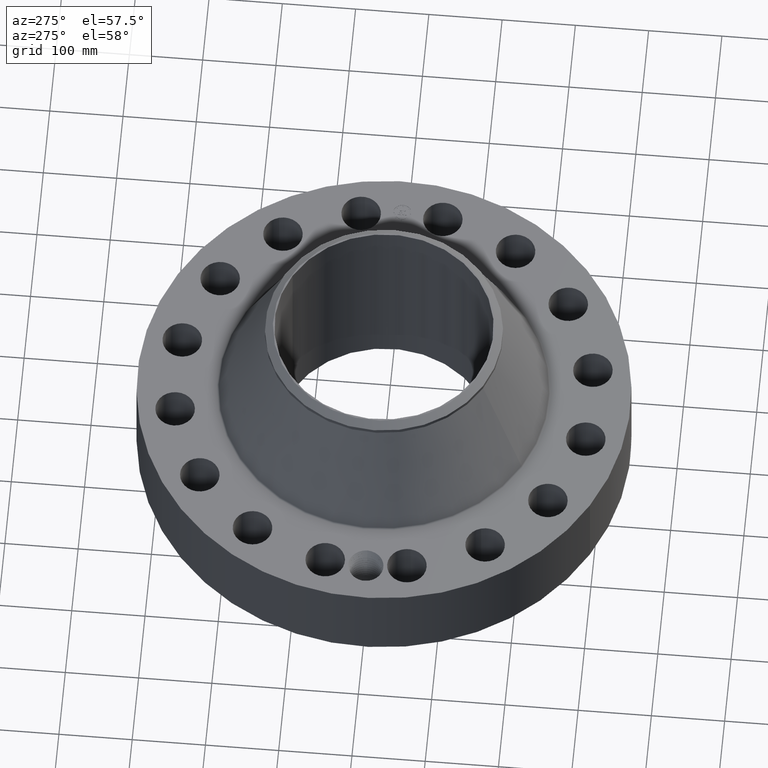
[diagram: clean part render]
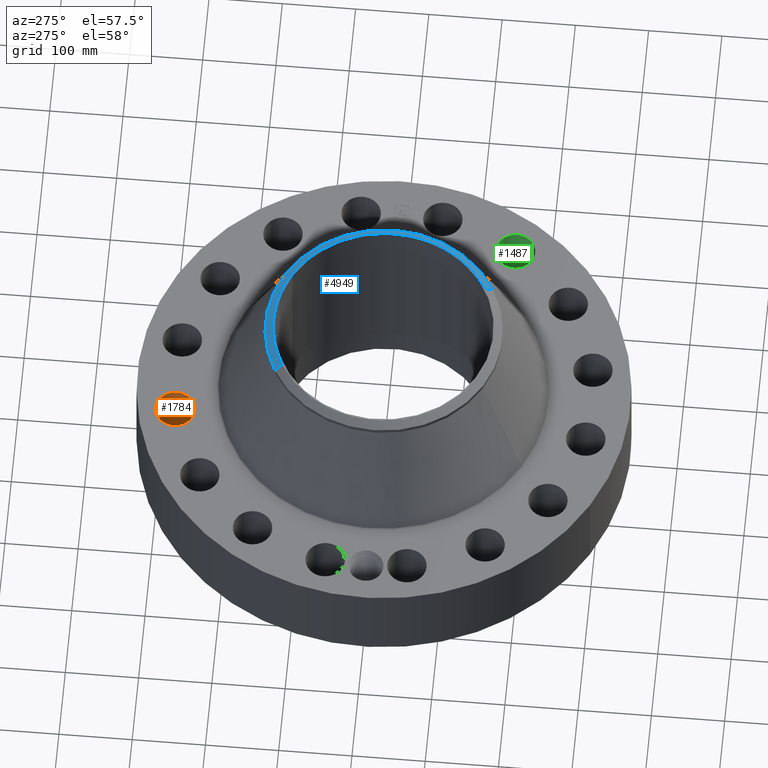
[diagram: same view with three faces highlighted in distinct colors, each labeled with its STEP entity id]
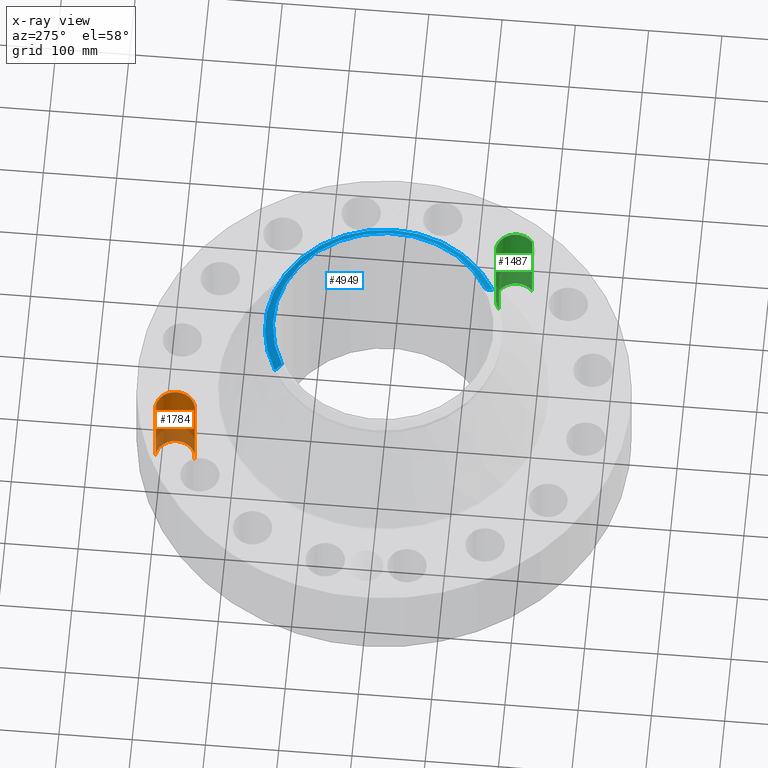
[diagram: x-ray of the same camera — body ghosted, the three highlighted faces saturated]
A machine part, auxiliary view with three faces highlighted in distinct colors.
The next image is the same camera in x-ray (body ghosted, the three faces saturated) — at least one of them is partly hidden behind the body in this view.
Their STEP definitions:

[orange] entity #1784 — the highlighted cylindrical surface (edge-blend (fillet) strip) has radius 26.924 mm, axis along (0, 0, -1).
#469=AXIS2_PLACEMENT_3D('Circle Axis2P3D',#467,#468,$) ;
#933=AXIS2_PLACEMENT_3D('Circle Axis2P3D',#931,#932,$) ;
#1759=AXIS2_PLACEMENT_3D('Cylinder Axis2P3D',#1756,#1757,#1758) ;
#462=CARTESIAN_POINT('Vertex',(-2.30828696633,9.97993070022,0.250000000001)) ;
#464=CARTESIAN_POINT('Vertex',(-2.08124527905,12.0877381089,0.250000000001)) ;
#467=CARTESIAN_POINT('Axis2P3D Location',(-2.19476612269,11.0338344046,0.250000000001)) ;
#931=CARTESIAN_POINT('Axis2P3D Location',(-2.19476612269,11.0338344046,5.13000000002)) ;
#935=CARTESIAN_POINT('Vertex',(-2.08124527905,12.0877381089,5.13000000002)) ;
#937=CARTESIAN_POINT('Vertex',(-2.30828696633,9.97993070022,5.13000000002)) ;
#1756=CARTESIAN_POINT('Axis2P3D Location',(-2.19476612269,11.0338344046,5.12606299215)) ;
#1761=CARTESIAN_POINT('Line Origine',(-2.30828696633,9.97993070022,2.69000000001)) ;
#1766=CARTESIAN_POINT('Line Origine',(-2.08124527905,12.0877381089,2.69000000001)) ;
#468=DIRECTION('Axis2P3D Direction',(0.,0.,-0.0393700787402)) ;
#932=DIRECTION('Axis2P3D Direction',(0.,0.,-0.0393700787402)) ;
#1757=DIRECTION('Axis2P3D Direction',(0.,0.,-0.0393700787402)) ;
#1758=DIRECTION('Axis2P3D XDirection',(0.00421634391778,0.0391436526652,0.)) ;
#1762=DIRECTION('Vector Direction',(0.,0.,-0.0393700787402)) ;
#1767=DIRECTION('Vector Direction',(0.,0.,-0.0393700787402)) ;
#1763=VECTOR('Line Direction',#1762,0.0393700787402) ;
#1768=VECTOR('Line Direction',#1767,0.0393700787402) ;
#1779=ORIENTED_EDGE('',*,*,#1770,.F.) ;
#1780=ORIENTED_EDGE('',*,*,#471,.T.) ;
#1781=ORIENTED_EDGE('',*,*,#1765,.T.) ;
#1782=ORIENTED_EDGE('',*,*,#939,.F.) ;
#1784=ADVANCED_FACE('PartBody',(#1783),#1760,.F.) ;
#470=CIRCLE('generated circle',#469,1.06) ;
#934=CIRCLE('generated circle',#933,1.06) ;
#1760=CYLINDRICAL_SURFACE('generated cylinder',#1759,1.06) ;
#471=EDGE_CURVE('',#465,#463,#470,.T.) ;
#939=EDGE_CURVE('',#936,#938,#934,.T.) ;
#1765=EDGE_CURVE('',#463,#938,#1764,.F.) ;
#1770=EDGE_CURVE('',#465,#936,#1769,.F.) ;
#1778=EDGE_LOOP('',(#1779,#1780,#1781,#1782)) ;
#1783=FACE_OUTER_BOUND('',#1778,.T.) ;
#1764=LINE('Line',#1761,#1763) ;
#1769=LINE('Line',#1766,#1768) ;
#463=VERTEX_POINT('',#462) ;
#465=VERTEX_POINT('',#464) ;
#936=VERTEX_POINT('',#935) ;
#938=VERTEX_POINT('',#937) ;

[blue] entity #4949 — the highlighted conical surface has half-angle 52.5 deg.
#3752=AXIS2_PLACEMENT_3D('Circle Axis2P3D',#3750,#3751,$) ;
#3779=AXIS2_PLACEMENT_3D('Circle Axis2P3D',#3777,#3778,$) ;
#4565=AXIS2_PLACEMENT_3D('Circle Axis2P3D',#4563,#4564,$) ;
#4930=AXIS2_PLACEMENT_3D('Cone Axis2P3D',#4927,#4928,#4929) ;
#3747=CARTESIAN_POINT('Vertex',(3.05633780861,5.59458883207,11.0467559539)) ;
#3750=CARTESIAN_POINT('Axis2P3D Location',(0.,0.,11.0467559539)) ;
#3754=CARTESIAN_POINT('Vertex',(3.05633780861,-5.59458883207,11.0467559539)) ;
#3774=CARTESIAN_POINT('Vertex',(-3.05633780861,5.59458883207,11.0467559539)) ;
#3777=CARTESIAN_POINT('Axis2P3D Location',(0.,0.,11.0467559539)) ;
#4563=CARTESIAN_POINT('Axis2P3D Location',(0.,0.,11.37)) ;
#4567=CARTESIAN_POINT('Vertex',(2.85437508172,-5.22489854025,11.37)) ;
#4569=CARTESIAN_POINT('Vertex',(-2.85437508172,5.22489854025,11.37)) ;
#4927=CARTESIAN_POINT('Axis2P3D Location',(0.,0.,11.37)) ;
#4932=CARTESIAN_POINT('Line Origine',(-2.95535644517,5.40974368616,11.208377977)) ;
#4937=CARTESIAN_POINT('Line Origine',(2.95535644517,-5.40974368616,11.208377977)) ;
#3751=DIRECTION('Axis2P3D Direction',(0.,0.,-0.0393700787402)) ;
#3778=DIRECTION('Axis2P3D Direction',(0.,0.,-0.0393700787402)) ;
#4564=DIRECTION('Axis2P3D Direction',(0.,0.,-0.0393700787402)) ;
#4928=DIRECTION('Axis2P3D Direction',(-0.,-0.,-0.0393700787402)) ;
#4929=DIRECTION('Axis2P3D XDirection',(0.0188750212049,-0.0345504945626,0.)) ;
#4933=DIRECTION('Vector Direction',(-0.014974561121,0.02741075027,-0.023966985394)) ;
#4938=DIRECTION('Vector Direction',(0.014974561121,-0.02741075027,-0.023966985394)) ;
#4934=VECTOR('Line Direction',#4933,0.0393700787402) ;
#4939=VECTOR('Line Direction',#4938,0.0393700787402) ;
#4943=ORIENTED_EDGE('',*,*,#4936,.F.) ;
#4944=ORIENTED_EDGE('',*,*,#4571,.F.) ;
#4945=ORIENTED_EDGE('',*,*,#4941,.T.) ;
#4946=ORIENTED_EDGE('',*,*,#3756,.T.) ;
#4947=ORIENTED_EDGE('',*,*,#3781,.F.) ;
#4949=ADVANCED_FACE('PartBody',(#4948),#4931,.T.) ;
#3753=CIRCLE('generated circle',#3752,6.37500000003) ;
#3780=CIRCLE('generated circle',#3779,6.37500000003) ;
#4566=CIRCLE('generated circle',#4565,5.9537401575) ;
#4931=CONICAL_SURFACE('Cone',#4930,5.9537401575,0.916297857297) ;
#3756=EDGE_CURVE('',#3755,#3748,#3753,.F.) ;
#3781=EDGE_CURVE('',#3775,#3748,#3780,.T.) ;
#4571=EDGE_CURVE('',#4568,#4570,#4566,.F.) ;
#4936=EDGE_CURVE('',#4570,#3775,#4935,.T.) ;
#4941=EDGE_CURVE('',#4568,#3755,#4940,.T.) ;
#4942=EDGE_LOOP('',(#4943,#4944,#4945,#4946,#4947)) ;
#4948=FACE_OUTER_BOUND('',#4942,.T.) ;
#4935=LINE('Line',#4932,#4934) ;
#4940=LINE('Line',#4937,#4939) ;
#3748=VERTEX_POINT('',#3747) ;
#3755=VERTEX_POINT('',#3754) ;
#3775=VERTEX_POINT('',#3774) ;
#4568=VERTEX_POINT('',#4567) ;
#4570=VERTEX_POINT('',#4569) ;

[green] entity #1487 — the highlighted cylindrical surface (edge-blend (fillet) strip) has radius 26.924 mm, axis along (0, -0, -1).
#280=AXIS2_PLACEMENT_3D('Circle Axis2P3D',#278,#279,$) ;
#762=AXIS2_PLACEMENT_3D('Circle Axis2P3D',#760,#761,$) ;
#1469=AXIS2_PLACEMENT_3D('Cylinder Axis2P3D',#1466,#1467,#1468) ;
#278=CARTESIAN_POINT('Axis2P3D Location',(9.35403313844,-6.2501651215,0.250000000001)) ;
#282=CARTESIAN_POINT('Vertex',(8.68908204072,-5.42467130708,0.250000000001)) ;
#284=CARTESIAN_POINT('Vertex',(10.0189842362,-7.07565893591,0.250000000001)) ;
#755=CARTESIAN_POINT('Vertex',(10.0189842362,-7.07565893591,5.13000000002)) ;
#757=CARTESIAN_POINT('Vertex',(8.68908204072,-5.42467130708,5.13000000002)) ;
#760=CARTESIAN_POINT('Axis2P3D Location',(9.35403313844,-6.2501651215,5.13000000002)) ;
#1466=CARTESIAN_POINT('Axis2P3D Location',(9.35403313844,-6.2501651215,5.12606299215)) ;
#1471=CARTESIAN_POINT('Line Origine',(8.68908204072,-5.42467130708,2.69000000001)) ;
#1476=CARTESIAN_POINT('Line Origine',(10.0189842362,-7.07565893591,2.69000000001)) ;
#279=DIRECTION('Axis2P3D Direction',(0.,0.,-0.0393700787402)) ;
#761=DIRECTION('Axis2P3D Direction',(0.,0.,-0.0393700787402)) ;
#1467=DIRECTION('Axis2P3D Direction',(0.,-0.,-0.0393700787402)) ;
#1468=DIRECTION('Axis2P3D XDirection',(0.0246973368639,-0.030660147616,0.)) ;
#1472=DIRECTION('Vector Direction',(0.,0.,-0.0393700787402)) ;
#1477=DIRECTION('Vector Direction',(0.,0.,-0.0393700787402)) ;
#1473=VECTOR('Line Direction',#1472,0.0393700787402) ;
#1478=VECTOR('Line Direction',#1477,0.0393700787402) ;
#1482=ORIENTED_EDGE('',*,*,#1475,.F.) ;
#1483=ORIENTED_EDGE('',*,*,#286,.T.) ;
#1484=ORIENTED_EDGE('',*,*,#1480,.T.) ;
#1485=ORIENTED_EDGE('',*,*,#764,.F.) ;
#1487=ADVANCED_FACE('PartBody',(#1486),#1470,.F.) ;
#281=CIRCLE('generated circle',#280,1.06) ;
#763=CIRCLE('generated circle',#762,1.06) ;
#1470=CYLINDRICAL_SURFACE('generated cylinder',#1469,1.06) ;
#286=EDGE_CURVE('',#283,#285,#281,.T.) ;
#764=EDGE_CURVE('',#758,#756,#763,.T.) ;
#1475=EDGE_CURVE('',#283,#758,#1474,.F.) ;
#1480=EDGE_CURVE('',#285,#756,#1479,.F.) ;
#1481=EDGE_LOOP('',(#1482,#1483,#1484,#1485)) ;
#1486=FACE_OUTER_BOUND('',#1481,.T.) ;
#1474=LINE('Line',#1471,#1473) ;
#1479=LINE('Line',#1476,#1478) ;
#283=VERTEX_POINT('',#282) ;
#285=VERTEX_POINT('',#284) ;
#756=VERTEX_POINT('',#755) ;
#758=VERTEX_POINT('',#757) ;